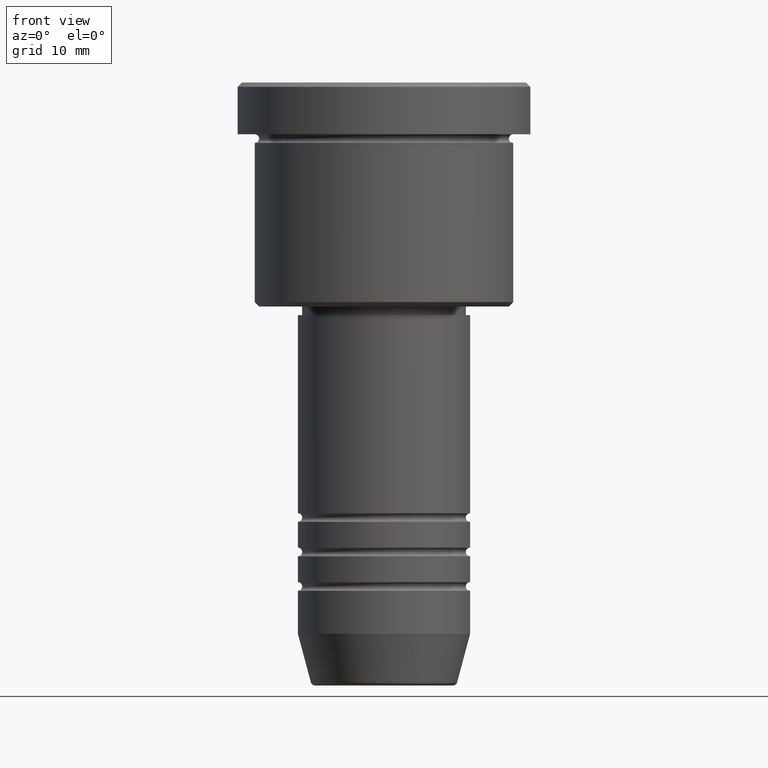
[diagram: clean part render]
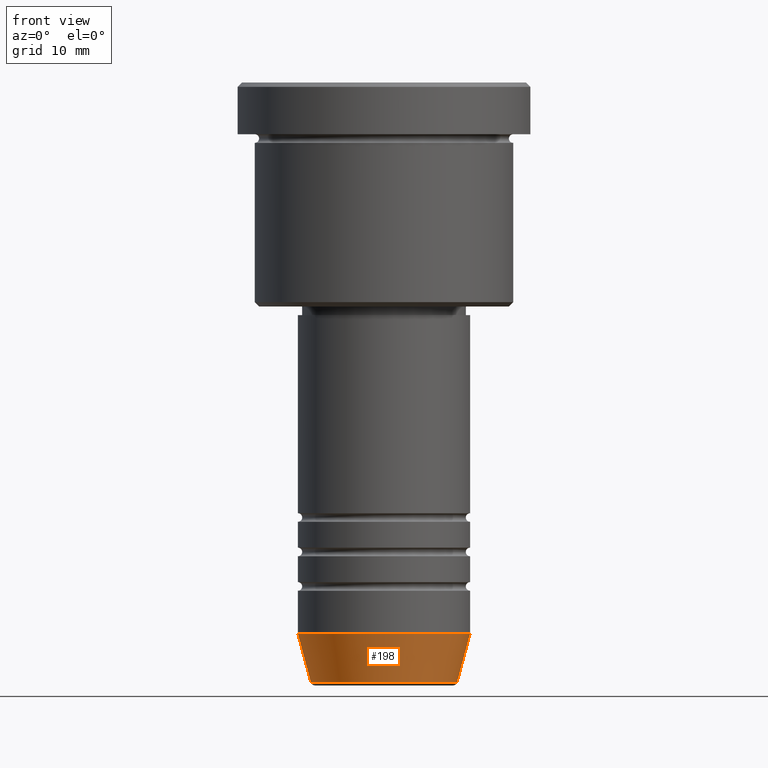
[diagram: same view with one face highlighted and labeled with its STEP entity id]
A machine part, front view. The second image highlights one B-rep face of the part: STEP entity #198.
In plain terms, the highlighted conical surface has half-angle 15 deg.
Its self-contained STEP definition (entity closure, byte-faithful):
#11 = EDGE_CURVE ( 'NONE', #415, #1117, #969, .T. ) ;
#36 = CARTESIAN_POINT ( 'NONE',  ( -8.491604264568312743, 1.132284198685156781E-15, -69.62940952255127058 ) ) ;
#38 = EDGE_LOOP ( 'NONE', ( #835, #666, #345, #50 ) ) ;
#50 = ORIENTED_EDGE ( 'NONE', *, *, #725, .F. ) ;
#74 = DIRECTION ( 'NONE',  ( -0.000000000000000000, -0.000000000000000000, 1.000000000000000000 ) ) ;
#97 = CARTESIAN_POINT ( 'NONE',  ( -10.00000000000000178, 1.224646799147353454E-15, -64.00000000000000000 ) ) ;
#115 = CARTESIAN_POINT ( 'NONE',  ( 8.491604264568312743, 0.000000000000000000, -69.62940952255127058 ) ) ;
#123 = CIRCLE ( 'NONE', #805, 8.491604264568312743 ) ;
#124 = LINE ( 'NONE', #778, #1122 ) ;
#133 = DIRECTION ( 'NONE',  ( -0.2588190451025214056, 3.169619151431772953E-17, 0.9659258262890680902 ) ) ;
#198 = ADVANCED_FACE ( 'NONE', ( #585 ), #225, .T. ) ;
#223 = VECTOR ( 'NONE', #133, 1000.000000000000000 ) ;
#225 = CONICAL_SURFACE ( 'NONE', #340, 10.00000000000000178, 0.2617993877991501295 ) ;
#335 = EDGE_CURVE ( 'NONE', #415, #680, #123, .T. ) ;
#340 = AXIS2_PLACEMENT_3D ( 'NONE', #573, #878, #677 ) ;
#345 = ORIENTED_EDGE ( 'NONE', *, *, #715, .T. ) ;
#369 = DIRECTION ( 'NONE',  ( 1.000000000000000000, 0.000000000000000000, 0.000000000000000000 ) ) ;
#411 = DIRECTION ( 'NONE',  ( 1.000000000000000000, 0.000000000000000000, 0.000000000000000000 ) ) ;
#415 = VERTEX_POINT ( 'NONE', #36 ) ;
#473 = CIRCLE ( 'NONE', #1033, 10.00000000000000178 ) ;
#528 = CARTESIAN_POINT ( 'NONE',  ( -10.00000000000000178, 1.224646799147353454E-15, -64.00000000000000000 ) ) ;
#556 = VERTEX_POINT ( 'NONE', #1082 ) ;
#573 = CARTESIAN_POINT ( 'NONE',  ( 0.000000000000000000, 0.000000000000000000, -64.00000000000000000 ) ) ;
#585 = FACE_OUTER_BOUND ( 'NONE', #38, .T. ) ;
#666 = ORIENTED_EDGE ( 'NONE', *, *, #335, .T. ) ;
#677 = DIRECTION ( 'NONE',  ( 1.000000000000000000, 0.000000000000000000, 0.000000000000000000 ) ) ;
#680 = VERTEX_POINT ( 'NONE', #115 ) ;
#682 = DIRECTION ( 'NONE',  ( 0.2588190451025214056, 0.000000000000000000, 0.9659258262890680902 ) ) ;
#715 = EDGE_CURVE ( 'NONE', #680, #556, #124, .T. ) ;
#725 = EDGE_CURVE ( 'NONE', #1117, #556, #473, .T. ) ;
#778 = CARTESIAN_POINT ( 'NONE',  ( 10.00000000000000178, 0.000000000000000000, -64.00000000000000000 ) ) ;
#795 = DIRECTION ( 'NONE',  ( -0.000000000000000000, -0.000000000000000000, 1.000000000000000000 ) ) ;
#805 = AXIS2_PLACEMENT_3D ( 'NONE', #909, #74, #369 ) ;
#835 = ORIENTED_EDGE ( 'NONE', *, *, #11, .F. ) ;
#878 = DIRECTION ( 'NONE',  ( -0.000000000000000000, -0.000000000000000000, 1.000000000000000000 ) ) ;
#909 = CARTESIAN_POINT ( 'NONE',  ( 0.000000000000000000, 0.000000000000000000, -69.62940952255127058 ) ) ;
#969 = LINE ( 'NONE', #528, #223 ) ;
#1033 = AXIS2_PLACEMENT_3D ( 'NONE', #1061, #795, #411 ) ;
#1061 = CARTESIAN_POINT ( 'NONE',  ( 0.000000000000000000, 0.000000000000000000, -64.00000000000000000 ) ) ;
#1082 = CARTESIAN_POINT ( 'NONE',  ( 10.00000000000000178, 0.000000000000000000, -64.00000000000000000 ) ) ;
#1117 = VERTEX_POINT ( 'NONE', #97 ) ;
#1122 = VECTOR ( 'NONE', #682, 1000.000000000000000 ) ;